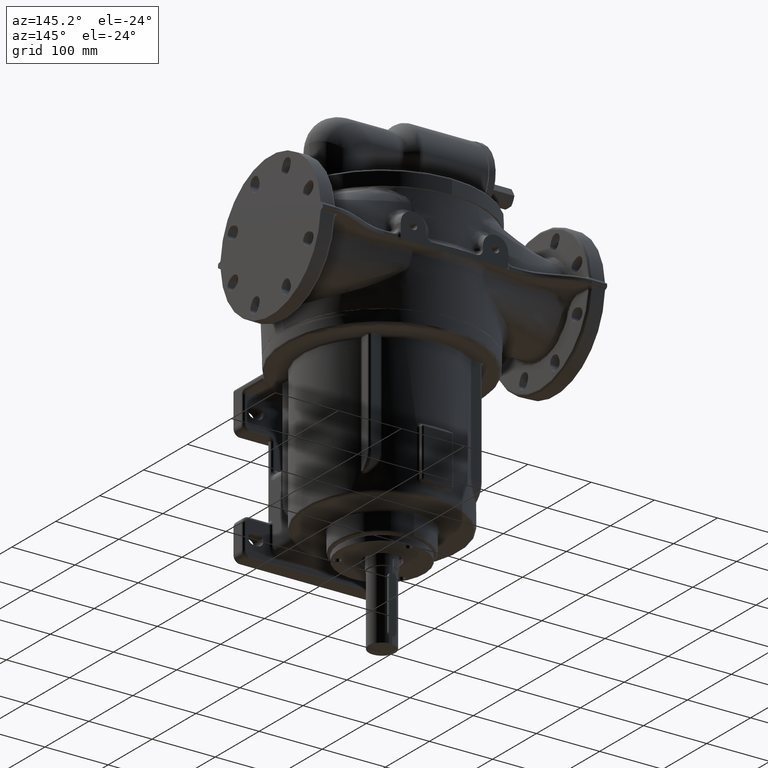
[diagram: clean part render]
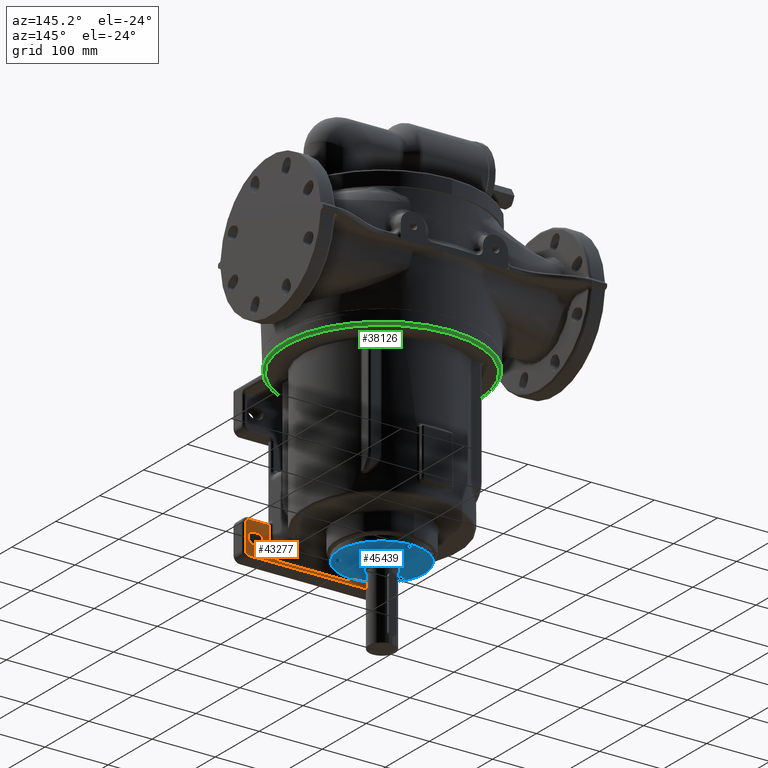
[diagram: same view with three faces highlighted in distinct colors, each labeled with its STEP entity id]
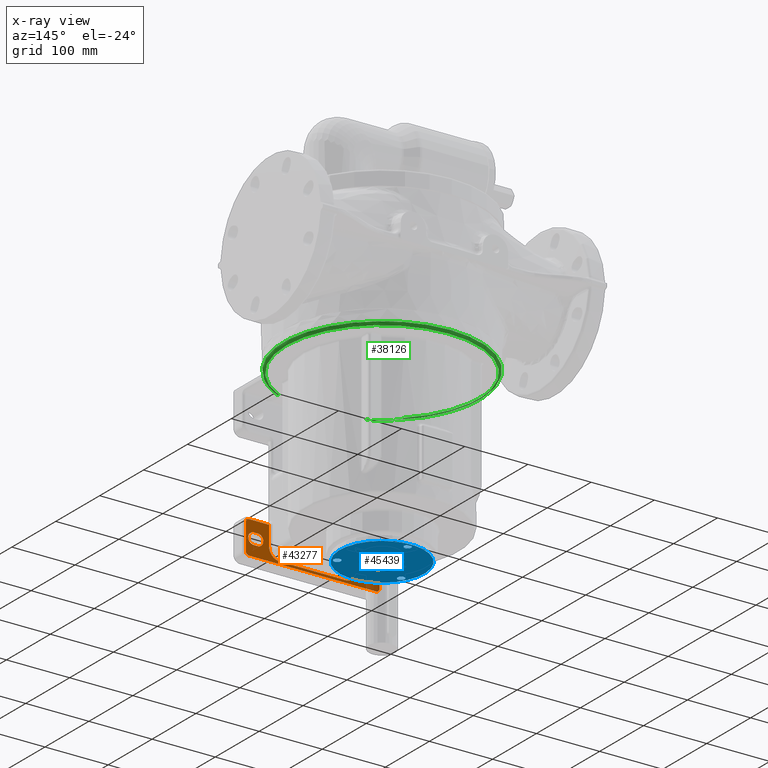
[diagram: x-ray of the same camera — body ghosted, the three highlighted faces saturated]
A machine part, auxiliary view with three faces highlighted in distinct colors.
The next image is the same camera in x-ray (body ghosted, the three faces saturated) — at least one of them is partly hidden behind the body in this view.
Their STEP definitions:

[orange] entity #43277 — the highlighted planar face has unit normal (0, -1, 0).
#9230=DIRECTION('',(0.E0,0.E0,1.E0));
#9231=VECTOR('',#9230,3.1E1);
#9232=CARTESIAN_POINT('',(-6.9E1,2.2E1,-2.23E2));
#9233=LINE('',#9232,#9231);
#9234=DIRECTION('',(-1.E0,0.E0,0.E0));
#9235=VECTOR('',#9234,3.1E1);
#9236=CARTESIAN_POINT('',(-6.9E1,2.2E1,-1.92E2));
#9237=LINE('',#9236,#9235);
#9238=CARTESIAN_POINT('',(-1.E2,2.2E1,-1.98E2));
#9239=DIRECTION('',(0.E0,-1.E0,0.E0));
#9240=DIRECTION('',(0.E0,0.E0,1.E0));
#9241=AXIS2_PLACEMENT_3D('',#9238,#9239,#9240);
#9243=DIRECTION('',(0.E0,0.E0,-1.E0));
#9244=VECTOR('',#9243,4.E1);
#9245=CARTESIAN_POINT('',(-1.06E2,2.2E1,-1.98E2));
#9246=LINE('',#9245,#9244);
#9247=CARTESIAN_POINT('',(-1.E2,2.2E1,-2.38E2));
#9248=DIRECTION('',(0.E0,-1.E0,0.E0));
#9249=DIRECTION('',(-1.E0,0.E0,0.E0));
#9250=AXIS2_PLACEMENT_3D('',#9247,#9248,#9249);
#9252=DIRECTION('',(1.E0,0.E0,0.E0));
#9253=VECTOR('',#9252,2.E2);
#9254=CARTESIAN_POINT('',(-1.E2,2.2E1,-2.44E2));
#9255=LINE('',#9254,#9253);
#9256=CARTESIAN_POINT('',(1.E2,2.2E1,-2.38E2));
#9257=DIRECTION('',(0.E0,-1.E0,0.E0));
#9258=DIRECTION('',(0.E0,0.E0,-1.E0));
#9259=AXIS2_PLACEMENT_3D('',#9256,#9257,#9258);
#9261=DIRECTION('',(0.E0,0.E0,1.E0));
#9262=VECTOR('',#9261,4.E1);
#9263=CARTESIAN_POINT('',(1.06E2,2.2E1,-2.38E2));
#9264=LINE('',#9263,#9262);
#9265=CARTESIAN_POINT('',(1.E2,2.2E1,-1.98E2));
#9266=DIRECTION('',(0.E0,-1.E0,0.E0));
#9267=DIRECTION('',(1.E0,0.E0,0.E0));
#9268=AXIS2_PLACEMENT_3D('',#9265,#9266,#9267);
#9270=DIRECTION('',(-1.E0,0.E0,0.E0));
#9271=VECTOR('',#9270,3.1E1);
#9272=CARTESIAN_POINT('',(1.E2,2.2E1,-1.92E2));
#9273=LINE('',#9272,#9271);
#9274=DIRECTION('',(0.E0,0.E0,-1.E0));
#9275=VECTOR('',#9274,3.1E1);
#9276=CARTESIAN_POINT('',(6.9E1,2.2E1,-1.92E2));
#9277=LINE('',#9276,#9275);
#9278=CARTESIAN_POINT('',(5.2E1,2.2E1,-2.23E2));
#9279=DIRECTION('',(0.E0,1.E0,0.E0));
#9280=DIRECTION('',(1.E0,0.E0,0.E0));
#9281=AXIS2_PLACEMENT_3D('',#9278,#9279,#9280);
#9283=DIRECTION('',(-1.E0,0.E0,0.E0));
#9284=VECTOR('',#9283,1.04E2);
#9285=CARTESIAN_POINT('',(5.2E1,2.2E1,-2.4E2));
#9286=LINE('',#9285,#9284);
#9287=CARTESIAN_POINT('',(-5.2E1,2.2E1,-2.23E2));
#9288=DIRECTION('',(0.E0,1.E0,0.E0));
#9289=DIRECTION('',(0.E0,0.E0,-1.E0));
#9290=AXIS2_PLACEMENT_3D('',#9287,#9288,#9289);
#9292=CARTESIAN_POINT('',(9.3E1,2.2E1,-2.18E2));
#9293=DIRECTION('',(0.E0,-1.E0,0.E0));
#9294=DIRECTION('',(0.E0,0.E0,-1.E0));
#9295=AXIS2_PLACEMENT_3D('',#9292,#9293,#9294);
#9297=DIRECTION('',(1.E0,0.E0,0.E0));
#9298=VECTOR('',#9297,6.E0);
#9299=CARTESIAN_POINT('',(8.7E1,2.2E1,-2.27E2));
#9300=LINE('',#9299,#9298);
#9301=CARTESIAN_POINT('',(8.7E1,2.2E1,-2.18E2));
#9302=DIRECTION('',(0.E0,-1.E0,0.E0));
#9303=DIRECTION('',(0.E0,0.E0,1.E0));
#9304=AXIS2_PLACEMENT_3D('',#9301,#9302,#9303);
#9306=DIRECTION('',(-1.E0,0.E0,0.E0));
#9307=VECTOR('',#9306,6.E0);
#9308=CARTESIAN_POINT('',(9.3E1,2.2E1,-2.09E2));
#9309=LINE('',#9308,#9307);
#9310=CARTESIAN_POINT('',(-8.7E1,2.2E1,-2.18E2));
#9311=DIRECTION('',(0.E0,-1.E0,0.E0));
#9312=DIRECTION('',(0.E0,0.E0,-1.E0));
#9313=AXIS2_PLACEMENT_3D('',#9310,#9311,#9312);
#9315=DIRECTION('',(1.E0,0.E0,0.E0));
#9316=VECTOR('',#9315,6.E0);
#9317=CARTESIAN_POINT('',(-9.3E1,2.2E1,-2.27E2));
#9318=LINE('',#9317,#9316);
#9319=CARTESIAN_POINT('',(-9.3E1,2.2E1,-2.18E2));
#9320=DIRECTION('',(0.E0,-1.E0,0.E0));
#9321=DIRECTION('',(0.E0,0.E0,1.E0));
#9322=AXIS2_PLACEMENT_3D('',#9319,#9320,#9321);
#9324=DIRECTION('',(-1.E0,0.E0,0.E0));
#9325=VECTOR('',#9324,6.E0);
#9326=CARTESIAN_POINT('',(-8.7E1,2.2E1,-2.09E2));
#9327=LINE('',#9326,#9325);
#32294=CARTESIAN_POINT('',(-6.9E1,2.2E1,-2.23E2));
#32295=CARTESIAN_POINT('',(-6.9E1,2.2E1,-1.92E2));
#32296=VERTEX_POINT('',#32294);
#32297=VERTEX_POINT('',#32295);
#32302=CARTESIAN_POINT('',(-5.2E1,2.2E1,-2.4E2));
#32303=VERTEX_POINT('',#32302);
#32306=CARTESIAN_POINT('',(5.2E1,2.2E1,-2.4E2));
#32307=VERTEX_POINT('',#32306);
#32310=CARTESIAN_POINT('',(6.9E1,2.2E1,-2.23E2));
#32311=VERTEX_POINT('',#32310);
#32314=CARTESIAN_POINT('',(6.9E1,2.2E1,-1.92E2));
#32315=VERTEX_POINT('',#32314);
#32416=CARTESIAN_POINT('',(-1.E2,2.2E1,-1.92E2));
#32417=VERTEX_POINT('',#32416);
#32420=CARTESIAN_POINT('',(-1.06E2,2.2E1,-1.98E2));
#32421=VERTEX_POINT('',#32420);
#32424=CARTESIAN_POINT('',(-1.06E2,2.2E1,-2.38E2));
#32425=VERTEX_POINT('',#32424);
#32428=CARTESIAN_POINT('',(-1.E2,2.2E1,-2.44E2));
#32429=VERTEX_POINT('',#32428);
#32432=CARTESIAN_POINT('',(1.E2,2.2E1,-2.44E2));
#32433=VERTEX_POINT('',#32432);
#32436=CARTESIAN_POINT('',(1.06E2,2.2E1,-2.38E2));
#32437=VERTEX_POINT('',#32436);
#32440=CARTESIAN_POINT('',(1.06E2,2.2E1,-1.98E2));
#32441=VERTEX_POINT('',#32440);
#32444=CARTESIAN_POINT('',(1.E2,2.2E1,-1.92E2));
#32445=VERTEX_POINT('',#32444);
#32654=CARTESIAN_POINT('',(9.3E1,2.2E1,-2.27E2));
#32656=VERTEX_POINT('',#32654);
#32658=CARTESIAN_POINT('',(9.3E1,2.2E1,-2.09E2));
#32660=VERTEX_POINT('',#32658);
#32662=CARTESIAN_POINT('',(8.7E1,2.2E1,-2.09E2));
#32664=VERTEX_POINT('',#32662);
#32666=CARTESIAN_POINT('',(8.7E1,2.2E1,-2.27E2));
#32668=VERTEX_POINT('',#32666);
#32670=CARTESIAN_POINT('',(-8.7E1,2.2E1,-2.27E2));
#32672=VERTEX_POINT('',#32670);
#32674=CARTESIAN_POINT('',(-8.7E1,2.2E1,-2.09E2));
#32676=VERTEX_POINT('',#32674);
#32678=CARTESIAN_POINT('',(-9.3E1,2.2E1,-2.09E2));
#32680=VERTEX_POINT('',#32678);
#32682=CARTESIAN_POINT('',(-9.3E1,2.2E1,-2.27E2));
#32684=VERTEX_POINT('',#32682);
#43224=CARTESIAN_POINT('',(0.E0,2.2E1,0.E0));
#43225=DIRECTION('',(0.E0,-1.E0,0.E0));
#43226=DIRECTION('',(0.E0,0.E0,-1.E0));
#43227=AXIS2_PLACEMENT_3D('',#43224,#43225,#43226);
#43228=PLANE('',#43227);
#43230=ORIENTED_EDGE('',*,*,#43229,.T.);
#43232=ORIENTED_EDGE('',*,*,#43231,.T.);
#43234=ORIENTED_EDGE('',*,*,#43233,.T.);
#43236=ORIENTED_EDGE('',*,*,#43235,.T.);
#43238=ORIENTED_EDGE('',*,*,#43237,.T.);
#43240=ORIENTED_EDGE('',*,*,#43239,.T.);
#43242=ORIENTED_EDGE('',*,*,#43241,.T.);
#43244=ORIENTED_EDGE('',*,*,#43243,.T.);
#43245=ORIENTED_EDGE('',*,*,#43204,.T.);
#43246=ORIENTED_EDGE('',*,*,#43216,.T.);
#43248=ORIENTED_EDGE('',*,*,#43247,.T.);
#43250=ORIENTED_EDGE('',*,*,#43249,.T.);
#43252=ORIENTED_EDGE('',*,*,#43251,.T.);
#43254=ORIENTED_EDGE('',*,*,#43253,.T.);
#43255=EDGE_LOOP('',(#43230,#43232,#43234,#43236,#43238,#43240,#43242,#43244,
#43245,#43246,#43248,#43250,#43252,#43254));
#43256=FACE_OUTER_BOUND('',#43255,.F.);
#43258=ORIENTED_EDGE('',*,*,#43257,.F.);
#43260=ORIENTED_EDGE('',*,*,#43259,.F.);
#43262=ORIENTED_EDGE('',*,*,#43261,.F.);
#43264=ORIENTED_EDGE('',*,*,#43263,.F.);
#43265=EDGE_LOOP('',(#43258,#43260,#43262,#43264));
#43266=FACE_BOUND('',#43265,.F.);
#43268=ORIENTED_EDGE('',*,*,#43267,.F.);
#43270=ORIENTED_EDGE('',*,*,#43269,.F.);
#43272=ORIENTED_EDGE('',*,*,#43271,.F.);
#43274=ORIENTED_EDGE('',*,*,#43273,.F.);
#43275=EDGE_LOOP('',(#43268,#43270,#43272,#43274));
#43276=FACE_BOUND('',#43275,.F.);
#43277=ADVANCED_FACE('',(#43256,#43266,#43276),#43228,.F.);
#9242=CIRCLE('',#9241,6.E0);
#9251=CIRCLE('',#9250,6.E0);
#9260=CIRCLE('',#9259,6.E0);
#9269=CIRCLE('',#9268,6.E0);
#9282=CIRCLE('',#9281,1.7E1);
#9291=CIRCLE('',#9290,1.7E1);
#9296=CIRCLE('',#9295,9.E0);
#9305=CIRCLE('',#9304,9.E0);
#9314=CIRCLE('',#9313,9.E0);
#9323=CIRCLE('',#9322,9.E0);
#43204=EDGE_CURVE('',#32441,#32445,#9269,.T.);
#43216=EDGE_CURVE('',#32445,#32315,#9273,.T.);
#43229=EDGE_CURVE('',#32296,#32297,#9233,.T.);
#43231=EDGE_CURVE('',#32297,#32417,#9237,.T.);
#43233=EDGE_CURVE('',#32417,#32421,#9242,.T.);
#43235=EDGE_CURVE('',#32421,#32425,#9246,.T.);
#43237=EDGE_CURVE('',#32425,#32429,#9251,.T.);
#43239=EDGE_CURVE('',#32429,#32433,#9255,.T.);
#43241=EDGE_CURVE('',#32433,#32437,#9260,.T.);
#43243=EDGE_CURVE('',#32437,#32441,#9264,.T.);
#43247=EDGE_CURVE('',#32315,#32311,#9277,.T.);
#43249=EDGE_CURVE('',#32311,#32307,#9282,.T.);
#43251=EDGE_CURVE('',#32307,#32303,#9286,.T.);
#43253=EDGE_CURVE('',#32303,#32296,#9291,.T.);
#43257=EDGE_CURVE('',#32656,#32660,#9296,.T.);
#43259=EDGE_CURVE('',#32668,#32656,#9300,.T.);
#43261=EDGE_CURVE('',#32664,#32668,#9305,.T.);
#43263=EDGE_CURVE('',#32660,#32664,#9309,.T.);
#43267=EDGE_CURVE('',#32672,#32676,#9314,.T.);
#43269=EDGE_CURVE('',#32684,#32672,#9318,.T.);
#43271=EDGE_CURVE('',#32680,#32684,#9323,.T.);
#43273=EDGE_CURVE('',#32676,#32680,#9327,.T.);

[blue] entity #45439 — the highlighted planar face has unit normal (0, 0, 1).
#10166=CARTESIAN_POINT('',(0.E0,1.8E2,-2.85E2));
#10167=DIRECTION('',(0.E0,0.E0,-1.E0));
#10168=DIRECTION('',(8.660254037844E-1,-5.E-1,0.E0));
#10169=AXIS2_PLACEMENT_3D('',#10166,#10167,#10168);
#10171=CARTESIAN_POINT('',(0.E0,1.8E2,-2.85E2));
#10172=DIRECTION('',(0.E0,0.E0,-1.E0));
#10173=DIRECTION('',(-8.660254037844E-1,5.E-1,0.E0));
#10174=AXIS2_PLACEMENT_3D('',#10171,#10172,#10173);
#10176=CARTESIAN_POINT('',(0.E0,1.8E2,-2.85E2));
#10177=DIRECTION('',(0.E0,0.E0,-1.E0));
#10178=DIRECTION('',(8.660254037844E-1,-5.E-1,0.E0));
#10179=AXIS2_PLACEMENT_3D('',#10176,#10177,#10178);
#10181=CARTESIAN_POINT('',(0.E0,1.8E2,-2.85E2));
#10182=DIRECTION('',(0.E0,0.E0,-1.E0));
#10183=DIRECTION('',(-8.660254037844E-1,5.E-1,0.E0));
#10184=AXIS2_PLACEMENT_3D('',#10181,#10182,#10183);
#10186=CARTESIAN_POINT('',(5.066248612139E1,1.5075E2,-2.85E2));
#10187=DIRECTION('',(0.E0,0.E0,-1.E0));
#10188=DIRECTION('',(5.E-1,8.660254037844E-1,0.E0));
#10189=AXIS2_PLACEMENT_3D('',#10186,#10187,#10188);
#10191=CARTESIAN_POINT('',(5.066248612139E1,1.5075E2,-2.85E2));
#10192=DIRECTION('',(0.E0,0.E0,-1.E0));
#10193=DIRECTION('',(-5.E-1,-8.660254037844E-1,0.E0));
#10194=AXIS2_PLACEMENT_3D('',#10191,#10192,#10193);
#10196=CARTESIAN_POINT('',(0.E0,2.385E2,-2.85E2));
#10197=DIRECTION('',(0.E0,0.E0,-1.E0));
#10198=DIRECTION('',(-1.E0,0.E0,0.E0));
#10199=AXIS2_PLACEMENT_3D('',#10196,#10197,#10198);
#10201=CARTESIAN_POINT('',(0.E0,2.385E2,-2.85E2));
#10202=DIRECTION('',(0.E0,0.E0,-1.E0));
#10203=DIRECTION('',(1.E0,1.033516706560E-14,0.E0));
#10204=AXIS2_PLACEMENT_3D('',#10201,#10202,#10203);
#10206=CARTESIAN_POINT('',(-5.066248612139E1,1.5075E2,-2.85E2));
#10207=DIRECTION('',(0.E0,0.E0,-1.E0));
#10208=DIRECTION('',(5.E-1,-8.660254037844E-1,0.E0));
#10209=AXIS2_PLACEMENT_3D('',#10206,#10207,#10208);
#10211=CARTESIAN_POINT('',(-5.066248612139E1,1.5075E2,-2.85E2));
#10212=DIRECTION('',(0.E0,0.E0,-1.E0));
#10213=DIRECTION('',(-5.E-1,8.660254037844E-1,0.E0));
#10214=AXIS2_PLACEMENT_3D('',#10211,#10212,#10213);
#32741=CARTESIAN_POINT('',(5.341248612139E1,1.555131397208E2,-2.85E2));
#32742=CARTESIAN_POINT('',(4.791248612139E1,1.459868602792E2,-2.85E2));
#32743=VERTEX_POINT('',#32741);
#32744=VERTEX_POINT('',#32742);
#32749=CARTESIAN_POINT('',(-5.5E0,2.385E2,-2.85E2));
#32750=CARTESIAN_POINT('',(5.5E0,2.385E2,-2.85E2));
#32751=VERTEX_POINT('',#32749);
#32752=VERTEX_POINT('',#32750);
#32757=CARTESIAN_POINT('',(-4.791248612139E1,1.459868602792E2,-2.85E2));
#32758=CARTESIAN_POINT('',(-5.341248612139E1,1.555131397208E2,-2.85E2));
#32759=VERTEX_POINT('',#32757);
#32760=VERTEX_POINT('',#32758);
#32773=CARTESIAN_POINT('',(5.802370205356E1,1.465E2,-2.85E2));
#32774=CARTESIAN_POINT('',(-5.802370205356E1,2.135E2,-2.85E2));
#32775=VERTEX_POINT('',#32773);
#32776=VERTEX_POINT('',#32774);
#32793=CARTESIAN_POINT('',(2.468172400786E1,1.6575E2,-2.85E2));
#32794=CARTESIAN_POINT('',(-2.468172400786E1,1.9425E2,-2.85E2));
#32795=VERTEX_POINT('',#32793);
#32796=VERTEX_POINT('',#32794);
#45405=CARTESIAN_POINT('',(0.E0,1.8E2,-2.85E2));
#45406=DIRECTION('',(0.E0,0.E0,1.E0));
#45407=DIRECTION('',(-8.660254037844E-1,5.E-1,0.E0));
#45408=AXIS2_PLACEMENT_3D('',#45405,#45406,#45407);
#45409=PLANE('',#45408);
#45410=ORIENTED_EDGE('',*,*,#45395,.F.);
#45412=ORIENTED_EDGE('',*,*,#45411,.F.);
#45413=EDGE_LOOP('',(#45410,#45412));
#45414=FACE_OUTER_BOUND('',#45413,.F.);
#45416=ORIENTED_EDGE('',*,*,#45415,.T.);
#45418=ORIENTED_EDGE('',*,*,#45417,.T.);
#45419=EDGE_LOOP('',(#45416,#45418));
#45420=FACE_BOUND('',#45419,.F.);
#45422=ORIENTED_EDGE('',*,*,#45421,.T.);
#45424=ORIENTED_EDGE('',*,*,#45423,.T.);
#45425=EDGE_LOOP('',(#45422,#45424));
#45426=FACE_BOUND('',#45425,.F.);
#45428=ORIENTED_EDGE('',*,*,#45427,.T.);
#45430=ORIENTED_EDGE('',*,*,#45429,.T.);
#45431=EDGE_LOOP('',(#45428,#45430));
#45432=FACE_BOUND('',#45431,.F.);
#45434=ORIENTED_EDGE('',*,*,#45433,.T.);
#45436=ORIENTED_EDGE('',*,*,#45435,.T.);
#45437=EDGE_LOOP('',(#45434,#45436));
#45438=FACE_BOUND('',#45437,.F.);
#45439=ADVANCED_FACE('',(#45414,#45420,#45426,#45432,#45438),#45409,.F.);
#10170=CIRCLE('',#10169,6.7E1);
#10175=CIRCLE('',#10174,6.7E1);
#10180=CIRCLE('',#10179,2.85E1);
#10185=CIRCLE('',#10184,2.85E1);
#10190=CIRCLE('',#10189,5.5E0);
#10195=CIRCLE('',#10194,5.5E0);
#10200=CIRCLE('',#10199,5.5E0);
#10205=CIRCLE('',#10204,5.5E0);
#10210=CIRCLE('',#10209,5.5E0);
#10215=CIRCLE('',#10214,5.5E0);
#45395=EDGE_CURVE('',#32775,#32776,#10170,.T.);
#45411=EDGE_CURVE('',#32776,#32775,#10175,.T.);
#45415=EDGE_CURVE('',#32795,#32796,#10180,.T.);
#45417=EDGE_CURVE('',#32796,#32795,#10185,.T.);
#45421=EDGE_CURVE('',#32743,#32744,#10190,.T.);
#45423=EDGE_CURVE('',#32744,#32743,#10195,.T.);
#45427=EDGE_CURVE('',#32751,#32752,#10200,.T.);
#45429=EDGE_CURVE('',#32752,#32751,#10205,.T.);
#45433=EDGE_CURVE('',#32759,#32760,#10210,.T.);
#45435=EDGE_CURVE('',#32760,#32759,#10215,.T.);

[green] entity #38126 — the highlighted toroidal blend (fillet) surface has major radius 152 mm and minor (blend) radius 4 mm.
#5611=CARTESIAN_POINT('',(0.E0,1.8E2,-1.2E1));
#5612=DIRECTION('',(0.E0,0.E0,-1.E0));
#5613=DIRECTION('',(-7.085934851687E-1,-7.056169447912E-1,0.E0));
#5614=AXIS2_PLACEMENT_3D('',#5611,#5612,#5613);
#5616=CARTESIAN_POINT('',(1.105405836863E2,6.992375661258E1,-1.2E1));
#5919=CARTESIAN_POINT('',(0.E0,1.8E2,-1.445E1));
#5920=DIRECTION('',(0.E0,0.E0,1.E0));
#5921=DIRECTION('',(-6.695141452696E-1,-7.427993061951E-1,0.E0));
#5922=AXIS2_PLACEMENT_3D('',#5919,#5920,#5921);
#5924=CARTESIAN_POINT('',(-6.883932076242E1,4.448192771084E1,-1.2E1));
#5925=DIRECTION('',(-8.915662650602E-1,4.528902681738E-1,0.E0));
#5926=DIRECTION('',(2.695142953257E-8,5.305697037272E-8,-1.E0));
#5927=AXIS2_PLACEMENT_3D('',#5924,#5925,#5926);
#5929=CARTESIAN_POINT('',(0.E0,1.8E2,-1.6E1));
#5930=DIRECTION('',(0.E0,0.E0,-1.E0));
#5931=DIRECTION('',(-4.528903740172E-1,-8.915662112948E-1,0.E0));
#5932=AXIS2_PLACEMENT_3D('',#5929,#5930,#5931);
#5934=CARTESIAN_POINT('',(0.E0,1.8E2,-1.445E1));
#5935=DIRECTION('',(0.E0,0.E0,1.E0));
#5936=DIRECTION('',(4.528902681738E-1,-8.915662650602E-1,0.E0));
#5937=AXIS2_PLACEMENT_3D('',#5934,#5935,#5936);
#5939=CARTESIAN_POINT('',(1.038830750405E2,6.474586144194E1,-1.445E1));
#5940=CARTESIAN_POINT('',(1.040566001274E2,6.490226624176E1,-1.444999993982E1));
#5941=CARTESIAN_POINT('',(1.043931655472E2,6.520089412269E1,-1.444411795495E1));
#5942=CARTESIAN_POINT('',(1.048647298493E2,6.560645732897E1,-1.442000655426E1));
#5943=CARTESIAN_POINT('',(1.053051252632E2,6.597367278946E1,-1.438278960614E1));
#5944=CARTESIAN_POINT('',(1.057246440276E2,6.631305575075E1,-1.433322644390E1));
#5945=CARTESIAN_POINT('',(1.061328299250E2,6.663360030853E1,-1.427069478004E1));
#5946=CARTESIAN_POINT('',(1.065315935757E2,6.693782069610E1,-1.419466859631E1));
#5947=CARTESIAN_POINT('',(1.069134714250E2,6.722148642613E1,-1.410678397054E1));
#5948=CARTESIAN_POINT('',(1.072816163076E2,6.748862242761E1,-1.400678039469E1));
#5949=CARTESIAN_POINT('',(1.076335397714E2,6.773907579091E1,-1.389565998571E1));
#5950=CARTESIAN_POINT('',(1.079676942403E2,6.797349334885E1,-1.377463317678E1));
#5951=CARTESIAN_POINT('',(1.082846703600E2,6.819394051458E1,-1.364426848315E1));
#5952=CARTESIAN_POINT('',(1.085844574399E2,6.840194953197E1,-1.350536150557E1));
#5953=CARTESIAN_POINT('',(1.088671598685E2,6.859899754248E1,-1.335870572701E1));
#5954=CARTESIAN_POINT('',(1.091328621068E2,6.878640565746E1,-1.320514156091E1));
#5955=CARTESIAN_POINT('',(1.093817353683E2,6.896540805695E1,-1.304550622014E1));
#5956=CARTESIAN_POINT('',(1.096140678342E2,6.913717770530E1,-1.288059036682E1));
#5957=CARTESIAN_POINT('',(1.098302260091E2,6.930280986780E1,-1.271114004720E1));
#5958=CARTESIAN_POINT('',(1.100306770128E2,6.946335804748E1,-1.253781197302E1));
#5959=CARTESIAN_POINT('',(1.102158932410E2,6.961978050831E1,-1.236123444585E1));
#5960=CARTESIAN_POINT('',(1.103864597805E2,6.977305029752E1,-1.218188800637E1));
#5961=CARTESIAN_POINT('',(1.104907734052E2,6.987373624116E1,-1.206077057834E1));
#5962=CARTESIAN_POINT('',(1.105405836863E2,6.992375661258E1,-1.2E1));
#5964=CARTESIAN_POINT('',(-1.105405836863E2,6.992375661258E1,-1.2E1));
#5965=CARTESIAN_POINT('',(-1.104907974261E2,6.987376036447E1,
-1.206074134480E1));
#5966=CARTESIAN_POINT('',(-1.103865356554E2,6.977312251631E1,
-1.218180118177E1));
#5967=CARTESIAN_POINT('',(-1.102160557940E2,6.961992338326E1,
-1.236106898594E1));
#5968=CARTESIAN_POINT('',(-1.100309434008E2,6.946357817510E1,
-1.253756706194E1));
#5969=CARTESIAN_POINT('',(-1.098306147475E2,6.930311515242E1,
-1.271081694658E1));
#5970=CARTESIAN_POINT('',(-1.096145937773E2,6.913757399856E1,
-1.288019501261E1));
#5971=CARTESIAN_POINT('',(-1.093824135783E2,6.896590277641E1,
-1.304504569897E1));
#5972=CARTESIAN_POINT('',(-1.091337059227E2,6.878700654832E1,
-1.320462497162E1));
#5973=CARTESIAN_POINT('',(-1.088681821826E2,6.859971379444E1,
-1.335814296595E1));
#5974=CARTESIAN_POINT('',(-1.085856691301E2,6.840279074396E1,
-1.350476309225E1));
#5975=CARTESIAN_POINT('',(-1.082860983616E2,6.819493015951E1,
-1.364364032315E1));
#5976=CARTESIAN_POINT('',(-1.079693214350E2,6.797462627391E1,
-1.377399811527E1));
#5977=CARTESIAN_POINT('',(-1.076354828302E2,6.774044989220E1,
-1.389500369887E1));
#5978=CARTESIAN_POINT('',(-1.072836586036E2,6.749009091536E1,
-1.400618356580E1));
#5979=CARTESIAN_POINT('',(-1.069156466491E2,6.722307714021E1,
-1.410623201330E1));
#5980=CARTESIAN_POINT('',(-1.065340589766E2,6.693967252988E1,
-1.419414393807E1));
#5981=CARTESIAN_POINT('',(-1.061358317063E2,6.663593035100E1,
-1.427018959755E1));
#5982=CARTESIAN_POINT('',(-1.057263488713E2,6.631441954704E1,
-1.433300516446E1));
#5983=CARTESIAN_POINT('',(-1.053063980962E2,6.597472315548E1,
-1.438266736279E1));
#5984=CARTESIAN_POINT('',(-1.048650837415E2,6.560676509855E1,
-1.441999293097E1));
#5985=CARTESIAN_POINT('',(-1.043930054444E2,6.520075590495E1,
-1.444412541293E1));
#5986=CARTESIAN_POINT('',(-1.040564912837E2,6.490216811474E1,
-1.444999993924E1));
#5987=CARTESIAN_POINT('',(-1.038830750405E2,6.474586144194E1,-1.445E1));
#6312=CARTESIAN_POINT('',(6.883932076242E1,4.448192771084E1,-1.2E1));
#6313=DIRECTION('',(-8.915662650602E-1,-4.528902681738E-1,0.E0));
#6314=DIRECTION('',(3.588240815589E-13,-7.069900220813E-13,-1.E0));
#6315=AXIS2_PLACEMENT_3D('',#6312,#6313,#6314);
#32501=CARTESIAN_POINT('',(6.883933647035E1,4.448193569001E1,-1.6E1));
#32502=VERTEX_POINT('',#32501);
#32503=CARTESIAN_POINT('',(-6.883933685062E1,4.448193588318E1,-1.6E1));
#32504=VERTEX_POINT('',#32503);
#32519=CARTESIAN_POINT('',(-7.027130650818E1,4.166290007282E1,-1.445E1));
#32520=VERTEX_POINT('',#32519);
#32523=CARTESIAN_POINT('',(-1.038830750405E2,6.474586144194E1,-1.445E1));
#32524=VERTEX_POINT('',#32523);
#32527=VERTEX_POINT('',#5964);
#32544=VERTEX_POINT('',#5616);
#32546=VERTEX_POINT('',#5939);
#32548=CARTESIAN_POINT('',(7.027130650818E1,4.166290007282E1,-1.445E1));
#32549=VERTEX_POINT('',#32548);
#38105=CARTESIAN_POINT('',(0.E0,1.8E2,-1.2E1));
#38106=DIRECTION('',(0.E0,0.E0,-1.E0));
#38107=DIRECTION('',(-9.867606821615E-5,9.999999951315E-1,0.E0));
#38108=AXIS2_PLACEMENT_3D('',#38105,#38106,#38107);
#38109=TOROIDAL_SURFACE('',#38108,1.52E2,4.E0);
#38111=ORIENTED_EDGE('',*,*,#38110,.T.);
#38113=ORIENTED_EDGE('',*,*,#38112,.F.);
#38115=ORIENTED_EDGE('',*,*,#38114,.T.);
#38117=ORIENTED_EDGE('',*,*,#38116,.T.);
#38119=ORIENTED_EDGE('',*,*,#38118,.T.);
#38120=ORIENTED_EDGE('',*,*,#38095,.T.);
#38121=ORIENTED_EDGE('',*,*,#37467,.F.);
#38123=ORIENTED_EDGE('',*,*,#38122,.T.);
#38124=EDGE_LOOP('',(#38111,#38113,#38115,#38117,#38119,#38120,#38121,#38123));
#38125=FACE_OUTER_BOUND('',#38124,.F.);
#38126=ADVANCED_FACE('',(#38125),#38109,.T.);
#5615=CIRCLE('',#5614,1.56E2);
#5923=CIRCLE('',#5922,1.551618823508E2);
#5928=CIRCLE('',#5927,4.E0);
#5933=CIRCLE('',#5932,1.52E2);
#5938=CIRCLE('',#5937,1.551618823508E2);
#5963=B_SPLINE_CURVE_WITH_KNOTS('',3,(#5939,#5940,#5941,#5942,#5943,#5944,#5945,
#5946,#5947,#5948,#5949,#5950,#5951,#5952,#5953,#5954,#5955,#5956,#5957,#5958,
#5959,#5960,#5961,#5962),.UNSPECIFIED.,.F.,.F.,(4,1,1,1,1,1,1,1,1,1,1,1,1,1,1,1,
1,1,1,1,1,4),(0.E0,4.761904761905E-2,9.523809523810E-2,1.428571428571E-1,
1.904761904762E-1,2.380952380952E-1,2.857142857143E-1,3.333333333333E-1,
3.809523809524E-1,4.285714285714E-1,4.761904761905E-1,5.238095238095E-1,
5.714285714286E-1,6.190476190476E-1,6.666666666667E-1,7.142857142857E-1,
7.619047619048E-1,8.095238095238E-1,8.571428571429E-1,9.047619047619E-1,
9.523809523810E-1,1.E0),.UNSPECIFIED.);
#5988=B_SPLINE_CURVE_WITH_KNOTS('',3,(#5964,#5965,#5966,#5967,#5968,#5969,#5970,
#5971,#5972,#5973,#5974,#5975,#5976,#5977,#5978,#5979,#5980,#5981,#5982,#5983,
#5984,#5985,#5986,#5987),.UNSPECIFIED.,.F.,.F.,(4,1,1,1,1,1,1,1,1,1,1,1,1,1,1,1,
1,1,1,1,1,4),(0.E0,4.761904761905E-2,9.523809523810E-2,1.428571428571E-1,
1.904761904762E-1,2.380952380952E-1,2.857142857143E-1,3.333333333333E-1,
3.809523809524E-1,4.285714285714E-1,4.761904761905E-1,5.238095238095E-1,
5.714285714286E-1,6.190476190476E-1,6.666666666667E-1,7.142857142857E-1,
7.619047619048E-1,8.095238095238E-1,8.571428571429E-1,9.047619047619E-1,
9.523809523810E-1,1.E0),.UNSPECIFIED.);
#6316=CIRCLE('',#6315,4.E0);
#37467=EDGE_CURVE('',#32527,#32544,#5615,.T.);
#38095=EDGE_CURVE('',#32546,#32544,#5963,.T.);
#38110=EDGE_CURVE('',#32524,#32520,#5923,.T.);
#38112=EDGE_CURVE('',#32504,#32520,#5928,.T.);
#38114=EDGE_CURVE('',#32504,#32502,#5933,.T.);
#38116=EDGE_CURVE('',#32502,#32549,#6316,.T.);
#38118=EDGE_CURVE('',#32549,#32546,#5938,.T.);
#38122=EDGE_CURVE('',#32527,#32524,#5988,.T.);